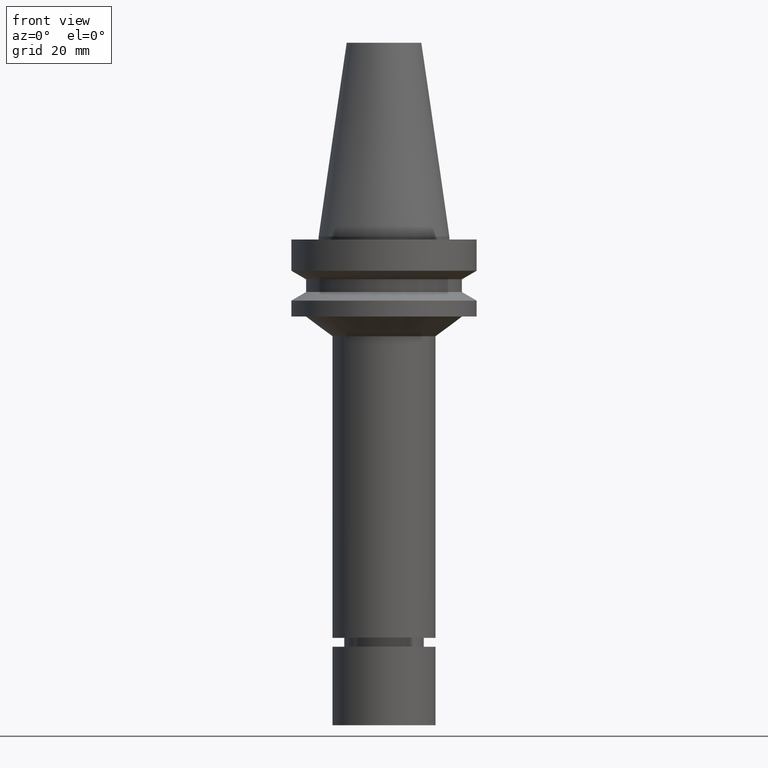
[diagram: clean part render]
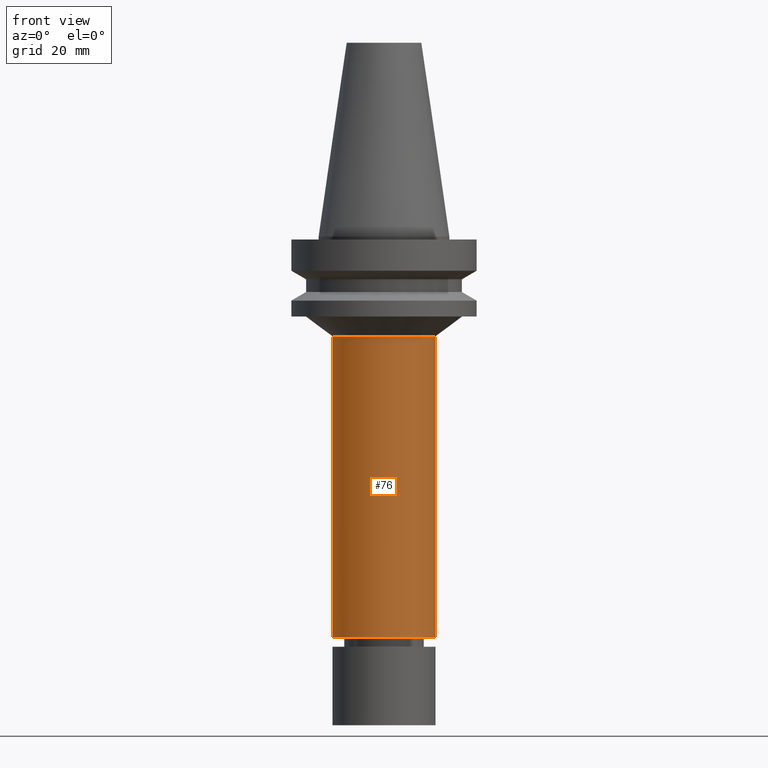
[diagram: same view with one face highlighted and labeled with its STEP entity id]
A machine part, front view. The second image highlights one B-rep face of the part: STEP entity #76.
In plain terms, the highlighted cylindrical surface (bore or boss wall) has radius 17.5 mm, axis along (0, -0, -1).
Its self-contained STEP definition (entity closure, byte-faithful):
#76=ADVANCED_FACE('Unnamed[1]',(#202,#203),#204,.T.);
#122=EDGE_CURVE('Unnamed[1]',#274,#274,#275,.T.);
#161=EDGE_CURVE('Unnamed[1]',#333,#333,#334,.T.);
#202=FACE_BOUND('',#378,.T.);
#203=FACE_BOUND('',#379,.T.);
#204=CYLINDRICAL_SURFACE('',#380,17.5000000000003);
#274=VERTEX_POINT('',#468);
#275=CIRCLE('',#469,17.4999999999998);
#333=VERTEX_POINT('',#542);
#334=CIRCLE('',#543,17.5000000000009);
#378=EDGE_LOOP('',(#581));
#379=EDGE_LOOP('',(#582));
#380=AXIS2_PLACEMENT_3D('',#583,#584,#585);
#468=CARTESIAN_POINT('',(8.2969820642233E-015,17.4999999999999,-135.5));
#469=AXIS2_PLACEMENT_3D('',#664,#665,#666);
#542=CARTESIAN_POINT('',(2.0613647219023E-015,17.5000000000009,-33.6646406676195));
#543=AXIS2_PLACEMENT_3D('',#727,#728,#729);
#581=ORIENTED_EDGE('',*,*,#122,.F.);
#582=ORIENTED_EDGE('',*,*,#161,.T.);
#583=CARTESIAN_POINT('',(5.1791733930628E-015,6.71629408254139E-014,-84.5823203338096));
#584=DIRECTION('',(6.12323399573676E-017,-6.62687154769285E-017,-1.0));
#585=DIRECTION('',(-7.69364216147669E-034,1.0,-6.62687154769285E-017));
#664=CARTESIAN_POINT('',(8.2969820642233E-015,6.37886915988697E-014,-135.5));
#665=DIRECTION('',(6.12323399573677E-017,-6.62687154769284E-017,-1.0));
#666=DIRECTION('',(-7.6936421614767E-034,1.0,-6.62687154769284E-017));
#727=CARTESIAN_POINT('',(2.0613647219023E-015,7.0537190051958E-014,-33.6646406676195));
#728=DIRECTION('',(6.12323399573677E-017,-6.62687154769285E-017,-1.0));
#729=DIRECTION('',(-7.69364216147668E-034,1.0,-6.62687154769285E-017));